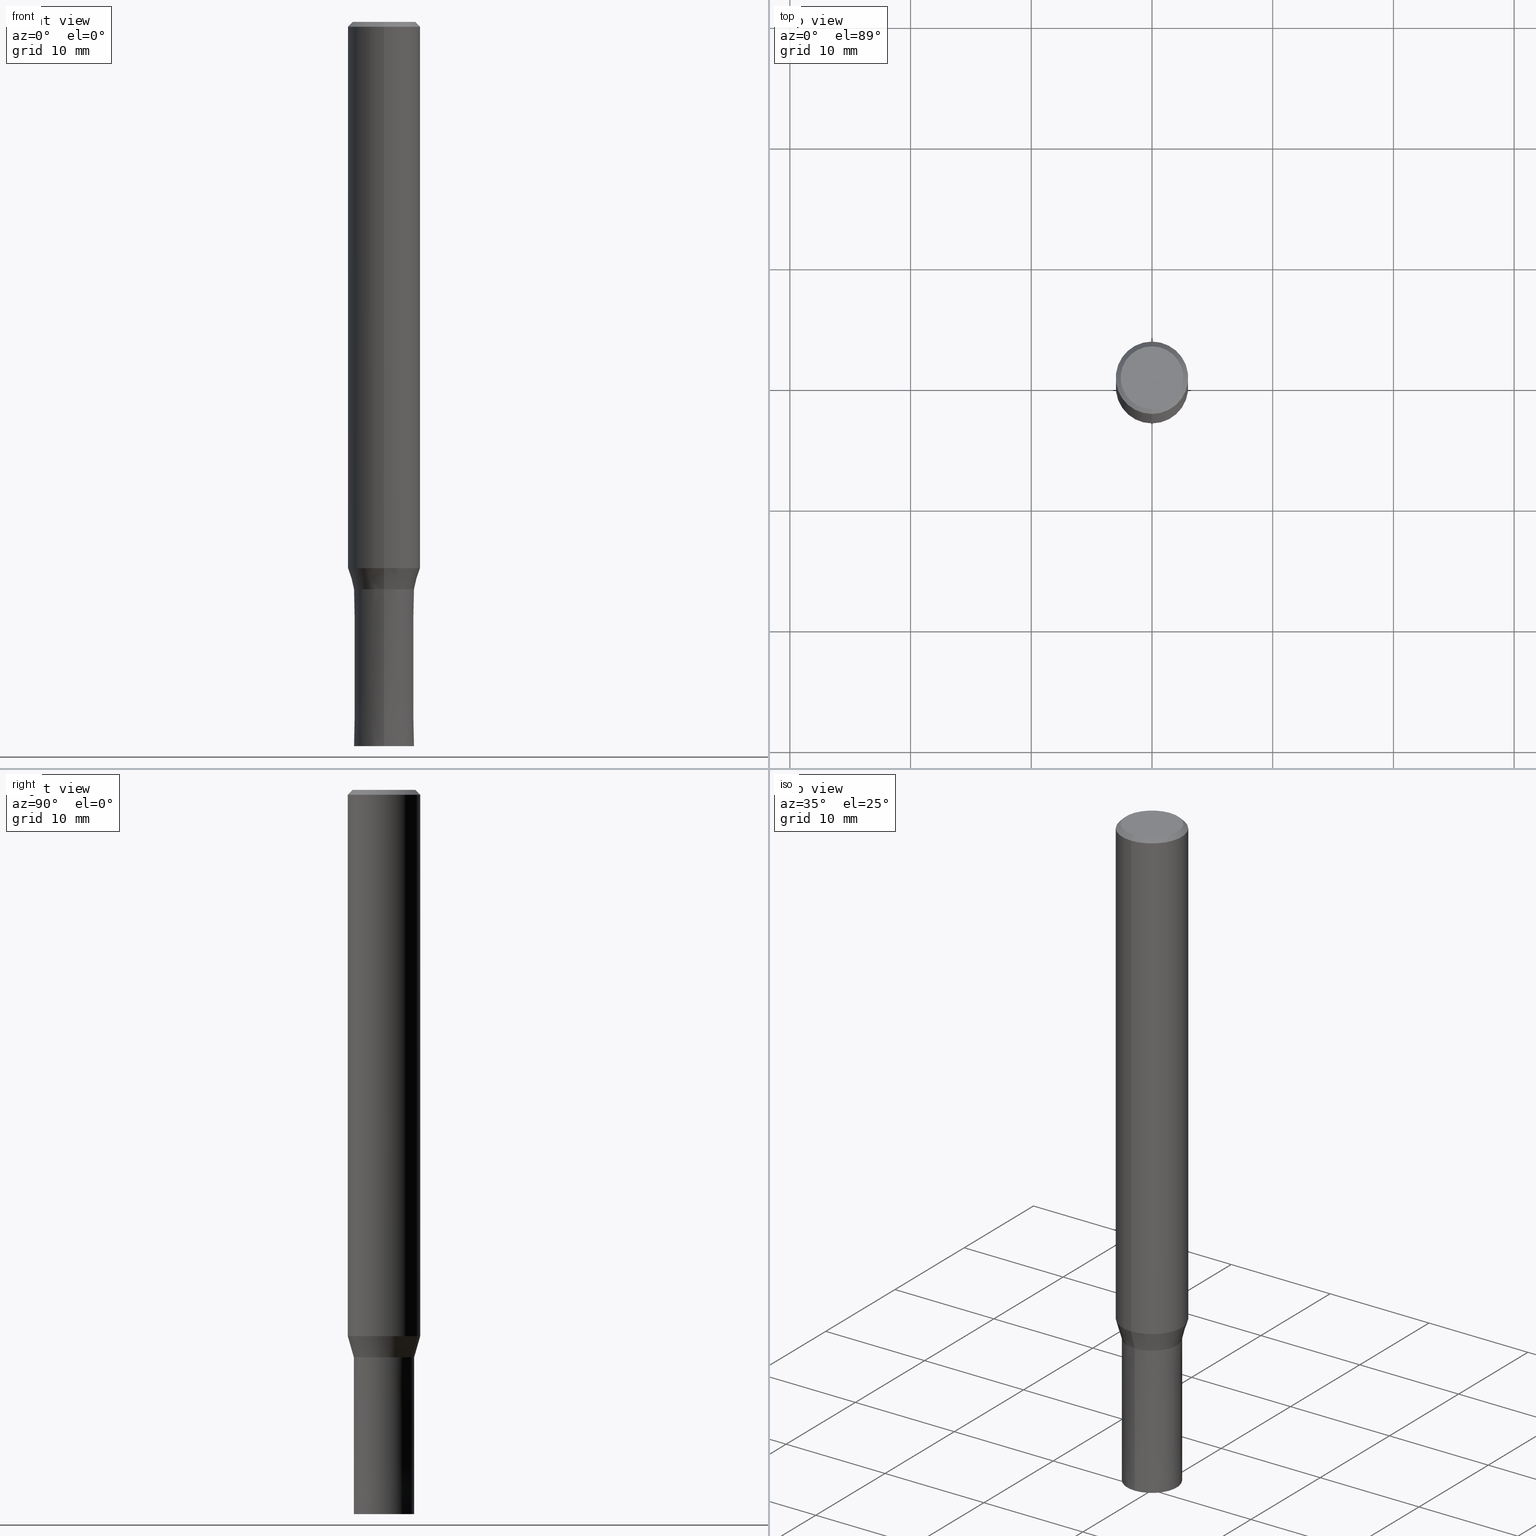
[diagram: canonical four-view strip — front | top / right | iso, engineering-drawing reading convention]
A machine part, canonical four-view strip (front | top / right | iso — engineering-drawing reading convention). The complete STEP part file that produces these views, byte-faithful:
ISO-10303-21;
HEADER;
FILE_DESCRIPTION(('no description'),'unknown implementation level');
FILE_NAME('CZS4050-1300-Huellk.stp','  ',('CIMSOURCE GmbH'),('CADClick - KiM GmbH - www.kimweb.de'),'unknown preprocess','ACIS','unknown authorization');
FILE_SCHEMA(('automotive_design'));
ENDSEC;
DATA;
#1=MECHANICAL_DESIGN_GEOMETRIC_PRESENTATION_REPRESENTATION(' ',(#14,#15,#16,#17,#18,#19,#20,#21,#22,#23,#24,#25,#26,#27,#28,#29,#30,#31,#32,#33,#34,#35,#36,#37,#38,#39,#40,#41,#42,#43,#44,#45,#46,#47,#48,#49,#50,#51,#52,#53,#54,#55,#56,#57,#58,#59,#60,#61,#62,#63,#64),#10);
#2=PRODUCT_DEFINITION_CONTEXT('',#65,'design');
#3=APPLICATION_PROTOCOL_DEFINITION('INTERNATIONAL STANDARD','automotive_design',1994,#65);
#4=PRODUCT_CATEGORY_RELATIONSHIP('NONE','NONE',#66,#67);
#5=SHAPE_DEFINITION_REPRESENTATION(#68,#69);
#6=PRODUCT_DEFINITION_CONTEXT('',#70,'design');
#7=APPLICATION_PROTOCOL_DEFINITION('INTERNATIONAL STANDARD','automotive_design',1994,#70);
#8=PRODUCT_CATEGORY_RELATIONSHIP('NONE','NONE',#71,#72);
#9=SHAPE_DEFINITION_REPRESENTATION(#73,#74);
#10= (GEOMETRIC_REPRESENTATION_CONTEXT(3)GLOBAL_UNCERTAINTY_ASSIGNED_CONTEXT((#77))GLOBAL_UNIT_ASSIGNED_CONTEXT((#79,#80,#81))REPRESENTATION_CONTEXT('NONE','WORKSPACE'));
#14=STYLED_ITEM('',(#83),#84);
#15=STYLED_ITEM('',(#85),#86);
#16=STYLED_ITEM('',(#87),#88);
#17=STYLED_ITEM('',(#89),#90);
#18=STYLED_ITEM('',(#91),#92);
#19=STYLED_ITEM('',(#93),#94);
#20=STYLED_ITEM('',(#95),#96);
#21=STYLED_ITEM('',(#97),#98);
#22=STYLED_ITEM('',(#99),#100);
#23=STYLED_ITEM('',(#101),#102);
#24=STYLED_ITEM('',(#103),#104);
#25=STYLED_ITEM('',(#105),#106);
#26=STYLED_ITEM('',(#107),#108);
#27=STYLED_ITEM('',(#109),#110);
#28=STYLED_ITEM('',(#111),#112);
#29=STYLED_ITEM('',(#113),#114);
#30=STYLED_ITEM('',(#115),#116);
#31=STYLED_ITEM('',(#117),#118);
#32=STYLED_ITEM('',(#119),#120);
#33=STYLED_ITEM('',(#121),#122);
#34=STYLED_ITEM('',(#123),#124);
#35=STYLED_ITEM('',(#125),#126);
#36=STYLED_ITEM('',(#127),#128);
#37=STYLED_ITEM('',(#129),#130);
#38=STYLED_ITEM('',(#131),#132);
#39=STYLED_ITEM('',(#133),#134);
#40=STYLED_ITEM('',(#135),#136);
#41=STYLED_ITEM('',(#137),#138);
#42=STYLED_ITEM('',(#139),#140);
#43=STYLED_ITEM('',(#141),#142);
#44=STYLED_ITEM('',(#143),#144);
#45=STYLED_ITEM('',(#145),#146);
#46=STYLED_ITEM('',(#147),#148);
#47=STYLED_ITEM('',(#149),#150);
#48=STYLED_ITEM('',(#151),#152);
#49=STYLED_ITEM('',(#153),#154);
#50=STYLED_ITEM('',(#155),#156);
#51=STYLED_ITEM('',(#157),#158);
#52=STYLED_ITEM('',(#159),#160);
#53=STYLED_ITEM('',(#161),#162);
#54=STYLED_ITEM('',(#163),#164);
#55=STYLED_ITEM('',(#165),#166);
#56=STYLED_ITEM('',(#167),#168);
#57=STYLED_ITEM('',(#169),#170);
#58=STYLED_ITEM('',(#171),#172);
#59=STYLED_ITEM('',(#173),#174);
#60=STYLED_ITEM('',(#175),#176);
#61=STYLED_ITEM('',(#177),#178);
#62=STYLED_ITEM('',(#179),#180);
#63=STYLED_ITEM('',(#181),#182);
#64=STYLED_ITEM('',(#183),#184);
#65=APPLICATION_CONTEXT(' ');
#66=PRODUCT_CATEGORY('part','NONE');
#67=PRODUCT_RELATED_PRODUCT_CATEGORY('detail',' ',(#185));
#68=PRODUCT_DEFINITION_SHAPE('NONE','NONE',#186);
#69=ADVANCED_BREP_SHAPE_REPRESENTATION('1',(#144,#187),#10);
#70=APPLICATION_CONTEXT(' ');
#71=PRODUCT_CATEGORY('part','NONE');
#72=PRODUCT_RELATED_PRODUCT_CATEGORY('detail',' ',(#188));
#73=PRODUCT_DEFINITION_SHAPE('NONE','NONE',#189);
#74=ADVANCED_BREP_SHAPE_REPRESENTATION('2',(#130,#190),#10);
#77=UNCERTAINTY_MEASURE_WITH_UNIT(LENGTH_MEASURE(1.0E-006),#79,'','');
#79= (CONVERSION_BASED_UNIT('MILLIMETRE',#193)LENGTH_UNIT()NAMED_UNIT(#196));
#80= (NAMED_UNIT(#198)PLANE_ANGLE_UNIT()SI_UNIT($,.RADIAN.));
#81= (NAMED_UNIT(#198)SOLID_ANGLE_UNIT()SI_UNIT($,.STERADIAN.));
#83=PRESENTATION_STYLE_ASSIGNMENT((#204));
#84=EDGE_CURVE('',#100,#160,#205,.T.);
#85=PRESENTATION_STYLE_ASSIGNMENT((#206));
#86=EDGE_CURVE('',#160,#100,#207,.T.);
#87=PRESENTATION_STYLE_ASSIGNMENT((#208));
#88=VERTEX_POINT('',#209);
#89=PRESENTATION_STYLE_ASSIGNMENT((#210));
#90=EDGE_CURVE('',#96,#166,#211,.T.);
#91=PRESENTATION_STYLE_ASSIGNMENT((#212));
#92=EDGE_CURVE('',#88,#128,#213,.T.);
#93=PRESENTATION_STYLE_ASSIGNMENT((#214));
#94=ADVANCED_FACE('',(#215),#216,.T.);
#95=PRESENTATION_STYLE_ASSIGNMENT((#217));
#96=VERTEX_POINT('',#218);
#97=PRESENTATION_STYLE_ASSIGNMENT((#219));
#98=VERTEX_POINT('',#220);
#99=PRESENTATION_STYLE_ASSIGNMENT((#221));
#100=VERTEX_POINT('',#222);
#101=PRESENTATION_STYLE_ASSIGNMENT((#223));
#102=EDGE_CURVE('',#112,#120,#224,.T.);
#103=PRESENTATION_STYLE_ASSIGNMENT((#225));
#104=EDGE_CURVE('',#88,#136,#226,.T.);
#105=PRESENTATION_STYLE_ASSIGNMENT((#227));
#106=EDGE_CURVE('',#182,#166,#228,.T.);
#107=PRESENTATION_STYLE_ASSIGNMENT((#229));
#108=ADVANCED_FACE('',(#230),#231,.T.);
#109=PRESENTATION_STYLE_ASSIGNMENT((#232));
#110=EDGE_CURVE('',#128,#88,#233,.T.);
#111=PRESENTATION_STYLE_ASSIGNMENT((#234));
#112=VERTEX_POINT('',#235);
#113=PRESENTATION_STYLE_ASSIGNMENT((#236));
#114=EDGE_CURVE('',#120,#182,#237,.T.);
#115=PRESENTATION_STYLE_ASSIGNMENT((#238));
#116=ADVANCED_FACE('',(#239),#240,.T.);
#117=PRESENTATION_STYLE_ASSIGNMENT((#241));
#118=EDGE_CURVE('',#120,#112,#242,.T.);
#119=PRESENTATION_STYLE_ASSIGNMENT((#243));
#120=VERTEX_POINT('',#244);
#121=PRESENTATION_STYLE_ASSIGNMENT((#245));
#122=EDGE_CURVE('',#136,#98,#246,.T.);
#123=PRESENTATION_STYLE_ASSIGNMENT((#247));
#124=EDGE_CURVE('',#160,#168,#248,.T.);
#125=PRESENTATION_STYLE_ASSIGNMENT((#249));
#126=EDGE_CURVE('',#168,#170,#250,.T.);
#127=PRESENTATION_STYLE_ASSIGNMENT((#251));
#128=VERTEX_POINT('',#252);
#129=PRESENTATION_STYLE_ASSIGNMENT((#253));
#130=MANIFOLD_SOLID_BREP('2',#254);
#131=PRESENTATION_STYLE_ASSIGNMENT((#255));
#132=ADVANCED_FACE('',(#256),#257,.T.);
#133=PRESENTATION_STYLE_ASSIGNMENT((#258));
#134=ADVANCED_FACE('',(#259),#260,.T.);
#135=PRESENTATION_STYLE_ASSIGNMENT((#261));
#136=VERTEX_POINT('',#262);
#137=PRESENTATION_STYLE_ASSIGNMENT((#263));
#138=ADVANCED_FACE('',(#264),#265,.T.);
#139=PRESENTATION_STYLE_ASSIGNMENT((#266));
#140=ADVANCED_FACE('',(#267),#268,.T.);
#141=PRESENTATION_STYLE_ASSIGNMENT((#269));
#142=EDGE_CURVE('',#162,#182,#270,.T.);
#143=PRESENTATION_STYLE_ASSIGNMENT((#271));
#144=MANIFOLD_SOLID_BREP('1',#272);
#145=PRESENTATION_STYLE_ASSIGNMENT((#273));
#146=EDGE_CURVE('',#170,#168,#274,.T.);
#147=PRESENTATION_STYLE_ASSIGNMENT((#275));
#148=ADVANCED_FACE('',(#276),#277,.T.);
#149=PRESENTATION_STYLE_ASSIGNMENT((#278));
#150=ADVANCED_FACE('',(#279),#280,.T.);
#151=PRESENTATION_STYLE_ASSIGNMENT((#281));
#152=ADVANCED_FACE('',(#282),#283,.T.);
#153=PRESENTATION_STYLE_ASSIGNMENT((#284));
#154=EDGE_CURVE('',#96,#162,#285,.T.);
#155=PRESENTATION_STYLE_ASSIGNMENT((#286));
#156=EDGE_CURVE('',#166,#96,#287,.T.);
#157=PRESENTATION_STYLE_ASSIGNMENT((#288));
#158=EDGE_CURVE('',#162,#112,#289,.T.);
#159=PRESENTATION_STYLE_ASSIGNMENT((#290));
#160=VERTEX_POINT('',#291);
#161=PRESENTATION_STYLE_ASSIGNMENT((#292));
#162=VERTEX_POINT('',#293);
#163=PRESENTATION_STYLE_ASSIGNMENT((#294));
#164=EDGE_CURVE('',#98,#128,#295,.T.);
#165=PRESENTATION_STYLE_ASSIGNMENT((#296));
#166=VERTEX_POINT('',#297);
#167=PRESENTATION_STYLE_ASSIGNMENT((#298));
#168=VERTEX_POINT('',#299);
#169=PRESENTATION_STYLE_ASSIGNMENT((#300));
#170=VERTEX_POINT('',#301);
#171=PRESENTATION_STYLE_ASSIGNMENT((#302));
#172=EDGE_CURVE('',#98,#136,#303,.T.);
#173=PRESENTATION_STYLE_ASSIGNMENT((#304));
#174=EDGE_CURVE('',#170,#100,#305,.T.);
#175=PRESENTATION_STYLE_ASSIGNMENT((#306));
#176=EDGE_CURVE('',#182,#162,#307,.T.);
#177=PRESENTATION_STYLE_ASSIGNMENT((#308));
#178=ADVANCED_FACE('',(#309,#310),#311,.T.);
#179=PRESENTATION_STYLE_ASSIGNMENT((#312));
#180=ADVANCED_FACE('',(#313),#314,.T.);
#181=PRESENTATION_STYLE_ASSIGNMENT((#315));
#182=VERTEX_POINT('',#316);
#183=PRESENTATION_STYLE_ASSIGNMENT((#317));
#184=ADVANCED_FACE('',(#318),#319,.T.);
#185=PRODUCT('1','1','PART-1-DESC',(#320));
#186=PRODUCT_DEFINITION('NONE','NONE',#321,#2);
#187=AXIS2_PLACEMENT_3D('',#322,#323,#324);
#188=PRODUCT('2','2','PART-2-DESC',(#325));
#189=PRODUCT_DEFINITION('NONE','NONE',#326,#6);
#190=AXIS2_PLACEMENT_3D('',#327,#328,#329);
#193=LENGTH_MEASURE_WITH_UNIT(LENGTH_MEASURE(1.0),#330);
#196=DIMENSIONAL_EXPONENTS(1.0,0.0,0.0,0.0,0.0,0.0,0.0);
#198=DIMENSIONAL_EXPONENTS(0.0,0.0,0.0,0.0,0.0,0.0,0.0);
#204=CURVE_STYLE('',#331,POSITIVE_LENGTH_MEASURE(1.0E-006),#332);
#205=CIRCLE('',#333,2.4999);
#206=CURVE_STYLE('',#334,POSITIVE_LENGTH_MEASURE(1.0E-006),#335);
#207=CIRCLE('',#336,2.4999);
#208=POINT_STYLE(' ',#337,POSITIVE_LENGTH_MEASURE(1.0E-006),#338);
#209=CARTESIAN_POINT('',(3.06145465423825E-016,-2.49995,-47.0));
#210=CURVE_STYLE('',#339,POSITIVE_LENGTH_MEASURE(1.0E-006),#340);
#211=CIRCLE('',#341,3.0);
#212=CURVE_STYLE('',#342,POSITIVE_LENGTH_MEASURE(1.0E-006),#343);
#213=CIRCLE('',#344,2.49995);
#214=SURFACE_STYLE_USAGE(.BOTH.,#345);
#215=FACE_OUTER_BOUND('',#346,.T.);
#216=CONICAL_SURFACE('',#347,2.49995,7.6923076921722E-006);
#217=POINT_STYLE(' ',#348,POSITIVE_LENGTH_MEASURE(1.0E-006),#349);
#218=CARTESIAN_POINT('',(3.67381906146713E-016,-3.0,-45.256));
#219=POINT_STYLE(' ',#350,POSITIVE_LENGTH_MEASURE(1.0E-006),#351);
#220=CARTESIAN_POINT('',(0.0,2.99995,-45.256));
#221=POINT_STYLE(' ',#352,POSITIVE_LENGTH_MEASURE(1.0E-006),#353);
#222=CARTESIAN_POINT('',(3.06139342392056E-016,-2.4999,-47.0));
#223=CURVE_STYLE('',#354,POSITIVE_LENGTH_MEASURE(1.0E-006),#355);
#224=CIRCLE('',#356,2.6);
#225=CURVE_STYLE('',#357,POSITIVE_LENGTH_MEASURE(1.0E-006),#358);
#226=LINE('',#359,#360);
#227=CURVE_STYLE('',#361,POSITIVE_LENGTH_MEASURE(1.0E-006),#362);
#228=LINE('',#363,#364);
#229=SURFACE_STYLE_USAGE(.BOTH.,#365);
#230=FACE_OUTER_BOUND('',#366,.T.);
#231=PLANE('',#367);
#232=CURVE_STYLE('',#368,POSITIVE_LENGTH_MEASURE(1.0E-006),#369);
#233=CIRCLE('',#370,2.49995);
#234=POINT_STYLE(' ',#371,POSITIVE_LENGTH_MEASURE(1.0E-006),#372);
#235=CARTESIAN_POINT('',(3.18397651993818E-016,-2.6,0.0));
#236=CURVE_STYLE('',#373,POSITIVE_LENGTH_MEASURE(1.0E-006),#374);
#237=LINE('',#375,#376);
#238=SURFACE_STYLE_USAGE(.BOTH.,#377);
#239=FACE_OUTER_BOUND('',#378,.T.);
#240=CYLINDRICAL_SURFACE('',#379,3.0);
#241=CURVE_STYLE('',#380,POSITIVE_LENGTH_MEASURE(1.0E-006),#381);
#242=CIRCLE('',#382,2.6);
#243=POINT_STYLE(' ',#383,POSITIVE_LENGTH_MEASURE(1.0E-006),#384);
#244=CARTESIAN_POINT('',(0.0,2.6,0.0));
#245=CURVE_STYLE('',#385,POSITIVE_LENGTH_MEASURE(1.0E-006),#386);
#246=CIRCLE('',#387,2.99995);
#247=CURVE_STYLE('',#388,POSITIVE_LENGTH_MEASURE(1.0E-006),#389);
#248=LINE('',#390,#391);
#249=CURVE_STYLE('',#392,POSITIVE_LENGTH_MEASURE(1.0E-006),#393);
#250=CIRCLE('',#394,2.5);
#251=POINT_STYLE(' ',#395,POSITIVE_LENGTH_MEASURE(1.0E-006),#396);
#252=CARTESIAN_POINT('',(0.0,2.49995,-47.0));
#253=SURFACE_STYLE_USAGE(.BOTH.,#397);
#254=CLOSED_SHELL('',(#134,#132,#94,#184));
#255=SURFACE_STYLE_USAGE(.BOTH.,#398);
#256=FACE_OUTER_BOUND('',#399,.T.);
#257=PLANE('',#400);
#258=SURFACE_STYLE_USAGE(.BOTH.,#401);
#259=FACE_OUTER_BOUND('',#402,.T.);
#260=CONICAL_SURFACE('',#403,2.49995,7.6923076921722E-006);
#261=POINT_STYLE(' ',#404,POSITIVE_LENGTH_MEASURE(1.0E-006),#405);
#262=CARTESIAN_POINT('',(3.67375783114944E-016,-2.99995,-45.256));
#263=SURFACE_STYLE_USAGE(.BOTH.,#406);
#264=FACE_OUTER_BOUND('',#407,.T.);
#265=PLANE('',#408);
#266=SURFACE_STYLE_USAGE(.BOTH.,#409);
#267=FACE_OUTER_BOUND('',#410,.T.);
#268=CYLINDRICAL_SURFACE('',#411,3.0);
#269=CURVE_STYLE('',#412,POSITIVE_LENGTH_MEASURE(1.0E-006),#413);
#270=CIRCLE('',#414,3.0);
#271=SURFACE_STYLE_USAGE(.BOTH.,#415);
#272=CLOSED_SHELL('',(#148,#140,#150,#178,#138,#180,#116,#152,#108));
#273=CURVE_STYLE('',#416,POSITIVE_LENGTH_MEASURE(1.0E-006),#417);
#274=CIRCLE('',#418,2.5);
#275=SURFACE_STYLE_USAGE(.BOTH.,#419);
#276=FACE_OUTER_BOUND('',#420,.T.);
#277=CONICAL_SURFACE('',#421,2.74995,0.279208199033747);
#278=SURFACE_STYLE_USAGE(.BOTH.,#422);
#279=FACE_OUTER_BOUND('',#423,.T.);
#280=CONICAL_SURFACE('',#424,2.8,0.78539816339745);
#281=SURFACE_STYLE_USAGE(.BOTH.,#425);
#282=FACE_OUTER_BOUND('',#426,.T.);
#283=CONICAL_SURFACE('',#427,2.74995,0.279208199033747);
#284=CURVE_STYLE('',#428,POSITIVE_LENGTH_MEASURE(1.0E-006),#429);
#285=LINE('',#430,#431);
#286=CURVE_STYLE('',#432,POSITIVE_LENGTH_MEASURE(1.0E-006),#433);
#287=CIRCLE('',#434,3.0);
#288=CURVE_STYLE('',#435,POSITIVE_LENGTH_MEASURE(1.0E-006),#436);
#289=LINE('',#437,#438);
#290=POINT_STYLE(' ',#439,POSITIVE_LENGTH_MEASURE(1.0E-006),#440);
#291=CARTESIAN_POINT('',(0.0,2.4999,-47.0));
#292=POINT_STYLE(' ',#441,POSITIVE_LENGTH_MEASURE(1.0E-006),#442);
#293=CARTESIAN_POINT('',(3.67381906146713E-016,-3.0,-0.399999999999999));
#294=CURVE_STYLE('',#443,POSITIVE_LENGTH_MEASURE(1.0E-006),#444);
#295=LINE('',#445,#446);
#296=POINT_STYLE(' ',#447,POSITIVE_LENGTH_MEASURE(1.0E-006),#448);
#297=CARTESIAN_POINT('',(0.0,3.0,-45.256));
#298=POINT_STYLE(' ',#449,POSITIVE_LENGTH_MEASURE(1.0E-006),#450);
#299=CARTESIAN_POINT('',(0.0,2.5,-60.0));
#300=POINT_STYLE(' ',#451,POSITIVE_LENGTH_MEASURE(1.0E-006),#452);
#301=CARTESIAN_POINT('',(3.06151588455594E-016,-2.5,-60.0));
#302=CURVE_STYLE('',#453,POSITIVE_LENGTH_MEASURE(1.0E-006),#454);
#303=CIRCLE('',#455,2.99995);
#304=CURVE_STYLE('',#456,POSITIVE_LENGTH_MEASURE(1.0E-006),#457);
#305=LINE('',#458,#459);
#306=CURVE_STYLE('',#460,POSITIVE_LENGTH_MEASURE(1.0E-006),#461);
#307=CIRCLE('',#462,3.0);
#308=SURFACE_STYLE_USAGE(.BOTH.,#463);
#309=FACE_OUTER_BOUND('',#464,.T.);
#310=FACE_BOUND('',#465,.T.);
#311=PLANE('',#466);
#312=SURFACE_STYLE_USAGE(.BOTH.,#467);
#313=FACE_OUTER_BOUND('',#468,.T.);
#314=CONICAL_SURFACE('',#469,2.8,0.78539816339745);
#315=POINT_STYLE(' ',#470,POSITIVE_LENGTH_MEASURE(1.0E-006),#471);
#316=CARTESIAN_POINT('',(0.0,3.0,-0.399999999999999));
#317=SURFACE_STYLE_USAGE(.BOTH.,#472);
#318=FACE_OUTER_BOUND('',#473,.T.);
#319=PLANE('',#474);
#320=PRODUCT_CONTEXT('',#65,'mechanical');
#321=PRODUCT_DEFINITION_FORMATION_WITH_SPECIFIED_SOURCE(' ','NONE',#185,.NOT_KNOWN.);
#322=CARTESIAN_POINT('',(0.0,0.0,0.0));
#323=DIRECTION('',(0.0,0.0,1.0));
#324=DIRECTION('',(1.0,0.0,0.0));
#325=PRODUCT_CONTEXT('',#70,'mechanical');
#326=PRODUCT_DEFINITION_FORMATION_WITH_SPECIFIED_SOURCE(' ','NONE',#188,.NOT_KNOWN.);
#327=CARTESIAN_POINT('',(0.0,0.0,0.0));
#328=DIRECTION('',(0.0,0.0,1.0));
#329=DIRECTION('',(1.0,0.0,0.0));
#330= (NAMED_UNIT(#196)LENGTH_UNIT()SI_UNIT(.MILLI.,.METRE.));
#331=DRAUGHTING_PRE_DEFINED_CURVE_FONT('continuous');
#332=COLOUR_RGB('',0.800000011920929,0.800000011920929,0.800000011920929);
#333=AXIS2_PLACEMENT_3D('',#476,#477,#478);
#334=DRAUGHTING_PRE_DEFINED_CURVE_FONT('continuous');
#335=COLOUR_RGB('',0.800000011920929,0.800000011920929,0.800000011920929);
#336=AXIS2_PLACEMENT_3D('',#479,#480,#481);
#337=PRE_DEFINED_MARKER('');
#338=COLOUR_RGB('',0.498039215803146,0.498039215803146,0.498039215803146);
#339=DRAUGHTING_PRE_DEFINED_CURVE_FONT('continuous');
#340=COLOUR_RGB('',0.498039215803146,0.498039215803146,0.498039215803146);
#341=AXIS2_PLACEMENT_3D('',#482,#483,#484);
#342=DRAUGHTING_PRE_DEFINED_CURVE_FONT('continuous');
#343=COLOUR_RGB('',0.498039215803146,0.498039215803146,0.498039215803146);
#344=AXIS2_PLACEMENT_3D('',#485,#486,#487);
#345=SURFACE_SIDE_STYLE('',(#488));
#346=EDGE_LOOP('',(#489,#490,#491,#492));
#347=AXIS2_PLACEMENT_3D('',#493,#494,#495);
#348=PRE_DEFINED_MARKER('');
#349=COLOUR_RGB('',0.498039215803146,0.498039215803146,0.498039215803146);
#350=PRE_DEFINED_MARKER('');
#351=COLOUR_RGB('',0.498039215803146,0.498039215803146,0.498039215803146);
#352=PRE_DEFINED_MARKER('');
#353=COLOUR_RGB('',0.800000011920929,0.800000011920929,0.800000011920929);
#354=DRAUGHTING_PRE_DEFINED_CURVE_FONT('continuous');
#355=COLOUR_RGB('',0.498039215803146,0.498039215803146,0.498039215803146);
#356=AXIS2_PLACEMENT_3D('',#496,#497,#498);
#357=DRAUGHTING_PRE_DEFINED_CURVE_FONT('continuous');
#358=COLOUR_RGB('',0.498039215803146,0.498039215803146,0.498039215803146);
#359=CARTESIAN_POINT('',(3.36760624269385E-016,-2.74995,-46.128));
#360=VECTOR('',#499,1.0);
#361=DRAUGHTING_PRE_DEFINED_CURVE_FONT('continuous');
#362=COLOUR_RGB('',0.498039215803146,0.498039215803146,0.498039215803146);
#363=CARTESIAN_POINT('',(-3.67381906146713E-016,3.0,-22.828));
#364=VECTOR('',#500,1.0);
#365=SURFACE_SIDE_STYLE('',(#501));
#366=EDGE_LOOP('',(#502,#503));
#367=AXIS2_PLACEMENT_3D('',#504,#505,#506);
#368=DRAUGHTING_PRE_DEFINED_CURVE_FONT('continuous');
#369=COLOUR_RGB('',0.498039215803146,0.498039215803146,0.498039215803146);
#370=AXIS2_PLACEMENT_3D('',#507,#508,#509);
#371=PRE_DEFINED_MARKER('');
#372=COLOUR_RGB('',0.498039215803146,0.498039215803146,0.498039215803146);
#373=DRAUGHTING_PRE_DEFINED_CURVE_FONT('continuous');
#374=COLOUR_RGB('',0.498039215803146,0.498039215803146,0.498039215803146);
#375=CARTESIAN_POINT('',(-3.42889779070266E-016,2.8,-0.200000000000003));
#376=VECTOR('',#510,1.0);
#377=SURFACE_SIDE_STYLE('',(#511));
#378=EDGE_LOOP('',(#512,#513,#514,#515));
#379=AXIS2_PLACEMENT_3D('',#516,#517,#518);
#380=DRAUGHTING_PRE_DEFINED_CURVE_FONT('continuous');
#381=COLOUR_RGB('',0.498039215803146,0.498039215803146,0.498039215803146);
#382=AXIS2_PLACEMENT_3D('',#519,#520,#521);
#383=PRE_DEFINED_MARKER('');
#384=COLOUR_RGB('',0.498039215803146,0.498039215803146,0.498039215803146);
#385=DRAUGHTING_PRE_DEFINED_CURVE_FONT('continuous');
#386=COLOUR_RGB('',0.498039215803146,0.498039215803146,0.498039215803146);
#387=AXIS2_PLACEMENT_3D('',#522,#523,#524);
#388=DRAUGHTING_PRE_DEFINED_CURVE_FONT('continuous');
#389=COLOUR_RGB('',0.800000011920929,0.800000011920929,0.800000011920929);
#390=CARTESIAN_POINT('',(-3.06145465423825E-016,2.49995,-53.5));
#391=VECTOR('',#525,1.0);
#392=DRAUGHTING_PRE_DEFINED_CURVE_FONT('continuous');
#393=COLOUR_RGB('',0.800000011920929,0.800000011920929,0.800000011920929);
#394=AXIS2_PLACEMENT_3D('',#526,#527,#528);
#395=PRE_DEFINED_MARKER('');
#396=COLOUR_RGB('',0.498039215803146,0.498039215803146,0.498039215803146);
#397=SURFACE_SIDE_STYLE('',(#529));
#398=SURFACE_SIDE_STYLE('',(#530));
#399=EDGE_LOOP('',(#531,#532));
#400=AXIS2_PLACEMENT_3D('',#533,#534,#535);
#401=SURFACE_SIDE_STYLE('',(#536));
#402=EDGE_LOOP('',(#537,#538,#539,#540));
#403=AXIS2_PLACEMENT_3D('',#541,#542,#543);
#404=PRE_DEFINED_MARKER('');
#405=COLOUR_RGB('',0.498039215803146,0.498039215803146,0.498039215803146);
#406=SURFACE_SIDE_STYLE('',(#544));
#407=EDGE_LOOP('',(#545,#546));
#408=AXIS2_PLACEMENT_3D('',#547,#548,#549);
#409=SURFACE_SIDE_STYLE('',(#550));
#410=EDGE_LOOP('',(#551,#552,#553,#554));
#411=AXIS2_PLACEMENT_3D('',#555,#556,#557);
#412=DRAUGHTING_PRE_DEFINED_CURVE_FONT('continuous');
#413=COLOUR_RGB('',0.498039215803146,0.498039215803146,0.498039215803146);
#414=AXIS2_PLACEMENT_3D('',#558,#559,#560);
#415=SURFACE_SIDE_STYLE('',(#561));
#416=DRAUGHTING_PRE_DEFINED_CURVE_FONT('continuous');
#417=COLOUR_RGB('',0.800000011920929,0.800000011920929,0.800000011920929);
#418=AXIS2_PLACEMENT_3D('',#562,#563,#564);
#419=SURFACE_SIDE_STYLE('',(#565));
#420=EDGE_LOOP('',(#566,#567,#568,#569));
#421=AXIS2_PLACEMENT_3D('',#570,#571,#572);
#422=SURFACE_SIDE_STYLE('',(#573));
#423=EDGE_LOOP('',(#574,#575,#576,#577));
#424=AXIS2_PLACEMENT_3D('',#578,#579,#580);
#425=SURFACE_SIDE_STYLE('',(#581));
#426=EDGE_LOOP('',(#582,#583,#584,#585));
#427=AXIS2_PLACEMENT_3D('',#586,#587,#588);
#428=DRAUGHTING_PRE_DEFINED_CURVE_FONT('continuous');
#429=COLOUR_RGB('',0.498039215803146,0.498039215803146,0.498039215803146);
#430=CARTESIAN_POINT('',(3.67381906146713E-016,-3.0,-22.828));
#431=VECTOR('',#589,1.0);
#432=DRAUGHTING_PRE_DEFINED_CURVE_FONT('continuous');
#433=COLOUR_RGB('',0.498039215803146,0.498039215803146,0.498039215803146);
#434=AXIS2_PLACEMENT_3D('',#590,#591,#592);
#435=DRAUGHTING_PRE_DEFINED_CURVE_FONT('continuous');
#436=COLOUR_RGB('',0.498039215803146,0.498039215803146,0.498039215803146);
#437=CARTESIAN_POINT('',(3.42889779070266E-016,-2.8,-0.200000000000003));
#438=VECTOR('',#593,1.0);
#439=PRE_DEFINED_MARKER('');
#440=COLOUR_RGB('',0.800000011920929,0.800000011920929,0.800000011920929);
#441=PRE_DEFINED_MARKER('');
#442=COLOUR_RGB('',0.498039215803146,0.498039215803146,0.498039215803146);
#443=DRAUGHTING_PRE_DEFINED_CURVE_FONT('continuous');
#444=COLOUR_RGB('',0.498039215803146,0.498039215803146,0.498039215803146);
#445=CARTESIAN_POINT('',(-3.36760624269385E-016,2.74995,-46.128));
#446=VECTOR('',#594,1.0);
#447=PRE_DEFINED_MARKER('');
#448=COLOUR_RGB('',0.498039215803146,0.498039215803146,0.498039215803146);
#449=PRE_DEFINED_MARKER('');
#450=COLOUR_RGB('',0.800000011920929,0.800000011920929,0.800000011920929);
#451=PRE_DEFINED_MARKER('');
#452=COLOUR_RGB('',0.800000011920929,0.800000011920929,0.800000011920929);
#453=DRAUGHTING_PRE_DEFINED_CURVE_FONT('continuous');
#454=COLOUR_RGB('',0.498039215803146,0.498039215803146,0.498039215803146);
#455=AXIS2_PLACEMENT_3D('',#595,#596,#597);
#456=DRAUGHTING_PRE_DEFINED_CURVE_FONT('continuous');
#457=COLOUR_RGB('',0.800000011920929,0.800000011920929,0.800000011920929);
#458=CARTESIAN_POINT('',(3.06145465423825E-016,-2.49995,-53.5));
#459=VECTOR('',#598,1.0);
#460=DRAUGHTING_PRE_DEFINED_CURVE_FONT('continuous');
#461=COLOUR_RGB('',0.498039215803146,0.498039215803146,0.498039215803146);
#462=AXIS2_PLACEMENT_3D('',#599,#600,#601);
#463=SURFACE_SIDE_STYLE('',(#602));
#464=EDGE_LOOP('',(#603,#604));
#465=EDGE_LOOP('',(#605,#606));
#466=AXIS2_PLACEMENT_3D('',#607,#608,#609);
#467=SURFACE_SIDE_STYLE('',(#610));
#468=EDGE_LOOP('',(#611,#612,#613,#614));
#469=AXIS2_PLACEMENT_3D('',#615,#616,#617);
#470=PRE_DEFINED_MARKER('');
#471=COLOUR_RGB('',0.498039215803146,0.498039215803146,0.498039215803146);
#472=SURFACE_SIDE_STYLE('',(#618));
#473=EDGE_LOOP('',(#619,#620));
#474=AXIS2_PLACEMENT_3D('',#621,#622,#623);
#476=CARTESIAN_POINT('',(0.0,0.0,-47.0));
#477=DIRECTION('',(0.0,0.0,-1.0));
#478=DIRECTION('',(0.0,1.0,0.0));
#479=CARTESIAN_POINT('',(0.0,0.0,-47.0));
#480=DIRECTION('',(0.0,0.0,-1.0));
#481=DIRECTION('',(0.0,1.0,0.0));
#482=CARTESIAN_POINT('',(0.0,0.0,-45.256));
#483=DIRECTION('',(0.0,0.0,-1.0));
#484=DIRECTION('',(0.0,1.0,0.0));
#485=CARTESIAN_POINT('',(0.0,0.0,-47.0));
#486=DIRECTION('',(0.0,0.0,-1.0));
#487=DIRECTION('',(0.0,1.0,0.0));
#488=SURFACE_STYLE_FILL_AREA(#624);
#489=ORIENTED_EDGE('',*,*,#124,.T.);
#490=ORIENTED_EDGE('',*,*,#146,.F.);
#491=ORIENTED_EDGE('',*,*,#174,.T.);
#492=ORIENTED_EDGE('',*,*,#84,.T.);
#493=CARTESIAN_POINT('',(0.0,0.0,-53.5));
#494=DIRECTION('',(0.0,-0.0,-1.0));
#495=DIRECTION('',(0.0,1.0,0.0));
#496=CARTESIAN_POINT('',(0.0,0.0,0.0));
#497=DIRECTION('',(0.0,0.0,-1.0));
#498=DIRECTION('',(0.0,1.0,0.0));
#499=DIRECTION('',(3.37494895041124E-017,-0.275594597388538,0.961273955691222));
#500=DIRECTION('',(0.0,0.0,-1.0));
#501=SURFACE_STYLE_FILL_AREA(#625);
#502=ORIENTED_EDGE('',*,*,#110,.T.);
#503=ORIENTED_EDGE('',*,*,#92,.T.);
#504=CARTESIAN_POINT('',(0.0,1.249975,-47.0));
#505=DIRECTION('',(0.0,0.0,-1.0));
#506=DIRECTION('',(0.0,1.0,0.0));
#507=CARTESIAN_POINT('',(0.0,0.0,-47.0));
#508=DIRECTION('',(0.0,0.0,-1.0));
#509=DIRECTION('',(0.0,1.0,0.0));
#510=DIRECTION('',(-8.65927457071937E-017,0.707106781186549,-0.707106781186546));
#511=SURFACE_STYLE_FILL_AREA(#626);
#512=ORIENTED_EDGE('',*,*,#106,.T.);
#513=ORIENTED_EDGE('',*,*,#90,.F.);
#514=ORIENTED_EDGE('',*,*,#154,.T.);
#515=ORIENTED_EDGE('',*,*,#142,.T.);
#516=CARTESIAN_POINT('',(0.0,0.0,-22.828));
#517=DIRECTION('',(-0.0,-0.0,1.0));
#518=DIRECTION('',(0.0,1.0,0.0));
#519=CARTESIAN_POINT('',(0.0,0.0,0.0));
#520=DIRECTION('',(0.0,0.0,-1.0));
#521=DIRECTION('',(0.0,1.0,0.0));
#522=CARTESIAN_POINT('',(0.0,0.0,-45.256));
#523=DIRECTION('',(0.0,0.0,-1.0));
#524=DIRECTION('',(0.0,1.0,0.0));
#525=DIRECTION('',(-9.42004887529793E-022,7.69230769209634E-006,-0.999999999970414));
#526=CARTESIAN_POINT('',(0.0,0.0,-60.0));
#527=DIRECTION('',(0.0,0.0,-1.0));
#528=DIRECTION('',(0.0,1.0,0.0));
#529=SURFACE_STYLE_FILL_AREA(#627);
#530=SURFACE_STYLE_FILL_AREA(#628);
#531=ORIENTED_EDGE('',*,*,#86,.F.);
#532=ORIENTED_EDGE('',*,*,#84,.F.);
#533=CARTESIAN_POINT('',(0.0,1.24995,-47.0));
#534=DIRECTION('',(-0.0,0.0,1.0));
#535=DIRECTION('',(0.0,-1.0,0.0));
#536=SURFACE_STYLE_FILL_AREA(#629);
#537=ORIENTED_EDGE('',*,*,#124,.F.);
#538=ORIENTED_EDGE('',*,*,#86,.T.);
#539=ORIENTED_EDGE('',*,*,#174,.F.);
#540=ORIENTED_EDGE('',*,*,#126,.F.);
#541=CARTESIAN_POINT('',(0.0,0.0,-53.5));
#542=DIRECTION('',(0.0,-0.0,-1.0));
#543=DIRECTION('',(0.0,1.0,0.0));
#544=SURFACE_STYLE_FILL_AREA(#630);
#545=ORIENTED_EDGE('',*,*,#118,.F.);
#546=ORIENTED_EDGE('',*,*,#102,.F.);
#547=CARTESIAN_POINT('',(0.0,1.3,0.0));
#548=DIRECTION('',(-0.0,0.0,1.0));
#549=DIRECTION('',(0.0,-1.0,0.0));
#550=SURFACE_STYLE_FILL_AREA(#631);
#551=ORIENTED_EDGE('',*,*,#106,.F.);
#552=ORIENTED_EDGE('',*,*,#176,.T.);
#553=ORIENTED_EDGE('',*,*,#154,.F.);
#554=ORIENTED_EDGE('',*,*,#156,.F.);
#555=CARTESIAN_POINT('',(0.0,0.0,-22.828));
#556=DIRECTION('',(-0.0,-0.0,1.0));
#557=DIRECTION('',(0.0,1.0,0.0));
#558=CARTESIAN_POINT('',(0.0,0.0,-0.399999999999999));
#559=DIRECTION('',(0.0,0.0,-1.0));
#560=DIRECTION('',(0.0,1.0,0.0));
#561=SURFACE_STYLE_FILL_AREA(#632);
#562=CARTESIAN_POINT('',(0.0,0.0,-60.0));
#563=DIRECTION('',(0.0,0.0,-1.0));
#564=DIRECTION('',(0.0,1.0,0.0));
#565=SURFACE_STYLE_FILL_AREA(#633);
#566=ORIENTED_EDGE('',*,*,#164,.F.);
#567=ORIENTED_EDGE('',*,*,#172,.T.);
#568=ORIENTED_EDGE('',*,*,#104,.F.);
#569=ORIENTED_EDGE('',*,*,#110,.F.);
#570=CARTESIAN_POINT('',(0.0,0.0,-46.128));
#571=DIRECTION('',(-0.0,-0.0,1.0));
#572=DIRECTION('',(0.0,1.0,0.0));
#573=SURFACE_STYLE_FILL_AREA(#634);
#574=ORIENTED_EDGE('',*,*,#114,.F.);
#575=ORIENTED_EDGE('',*,*,#118,.T.);
#576=ORIENTED_EDGE('',*,*,#158,.F.);
#577=ORIENTED_EDGE('',*,*,#176,.F.);
#578=CARTESIAN_POINT('',(0.0,0.0,-0.200000000000003));
#579=DIRECTION('',(0.0,-0.0,-1.0));
#580=DIRECTION('',(0.0,1.0,0.0));
#581=SURFACE_STYLE_FILL_AREA(#635);
#582=ORIENTED_EDGE('',*,*,#164,.T.);
#583=ORIENTED_EDGE('',*,*,#92,.F.);
#584=ORIENTED_EDGE('',*,*,#104,.T.);
#585=ORIENTED_EDGE('',*,*,#122,.T.);
#586=CARTESIAN_POINT('',(0.0,0.0,-46.128));
#587=DIRECTION('',(-0.0,-0.0,1.0));
#588=DIRECTION('',(0.0,1.0,0.0));
#589=DIRECTION('',(-0.0,-0.0,1.0));
#590=CARTESIAN_POINT('',(0.0,0.0,-45.256));
#591=DIRECTION('',(0.0,0.0,-1.0));
#592=DIRECTION('',(0.0,1.0,0.0));
#593=DIRECTION('',(-8.65927457071937E-017,0.707106781186549,0.707106781186546));
#594=DIRECTION('',(3.37494895041124E-017,-0.275594597388538,-0.961273955691222));
#595=CARTESIAN_POINT('',(0.0,0.0,-45.256));
#596=DIRECTION('',(0.0,0.0,-1.0));
#597=DIRECTION('',(0.0,1.0,0.0));
#598=DIRECTION('',(-9.42004887529793E-022,7.69230769209634E-006,0.999999999970414));
#599=CARTESIAN_POINT('',(0.0,0.0,-0.399999999999999));
#600=DIRECTION('',(0.0,0.0,-1.0));
#601=DIRECTION('',(0.0,1.0,0.0));
#602=SURFACE_STYLE_FILL_AREA(#636);
#603=ORIENTED_EDGE('',*,*,#156,.T.);
#604=ORIENTED_EDGE('',*,*,#90,.T.);
#605=ORIENTED_EDGE('',*,*,#172,.F.);
#606=ORIENTED_EDGE('',*,*,#122,.F.);
#607=CARTESIAN_POINT('',(0.0,1.5,-45.256));
#608=DIRECTION('',(0.0,0.0,-1.0));
#609=DIRECTION('',(0.0,1.0,0.0));
#610=SURFACE_STYLE_FILL_AREA(#637);
#611=ORIENTED_EDGE('',*,*,#114,.T.);
#612=ORIENTED_EDGE('',*,*,#142,.F.);
#613=ORIENTED_EDGE('',*,*,#158,.T.);
#614=ORIENTED_EDGE('',*,*,#102,.T.);
#615=CARTESIAN_POINT('',(0.0,0.0,-0.200000000000003));
#616=DIRECTION('',(0.0,-0.0,-1.0));
#617=DIRECTION('',(0.0,1.0,0.0));
#618=SURFACE_STYLE_FILL_AREA(#638);
#619=ORIENTED_EDGE('',*,*,#126,.T.);
#620=ORIENTED_EDGE('',*,*,#146,.T.);
#621=CARTESIAN_POINT('',(0.0,1.2475,-60.0));
#622=DIRECTION('',(0.0,0.0,-1.0));
#623=DIRECTION('',(0.0,1.0,0.0));
#624=FILL_AREA_STYLE('',(#639));
#625=FILL_AREA_STYLE('',(#640));
#626=FILL_AREA_STYLE('',(#641));
#627=FILL_AREA_STYLE('',(#642));
#628=FILL_AREA_STYLE('',(#643));
#629=FILL_AREA_STYLE('',(#644));
#630=FILL_AREA_STYLE('',(#645));
#631=FILL_AREA_STYLE('',(#646));
#632=FILL_AREA_STYLE('',(#647));
#633=FILL_AREA_STYLE('',(#648));
#634=FILL_AREA_STYLE('',(#649));
#635=FILL_AREA_STYLE('',(#650));
#636=FILL_AREA_STYLE('',(#651));
#637=FILL_AREA_STYLE('',(#652));
#638=FILL_AREA_STYLE('',(#653));
#639=FILL_AREA_STYLE_COLOUR('',#654);
#640=FILL_AREA_STYLE_COLOUR('',#655);
#641=FILL_AREA_STYLE_COLOUR('',#656);
#642=FILL_AREA_STYLE_COLOUR('',#657);
#643=FILL_AREA_STYLE_COLOUR('',#658);
#644=FILL_AREA_STYLE_COLOUR('',#659);
#645=FILL_AREA_STYLE_COLOUR('',#660);
#646=FILL_AREA_STYLE_COLOUR('',#661);
#647=FILL_AREA_STYLE_COLOUR('',#662);
#648=FILL_AREA_STYLE_COLOUR('',#663);
#649=FILL_AREA_STYLE_COLOUR('',#664);
#650=FILL_AREA_STYLE_COLOUR('',#665);
#651=FILL_AREA_STYLE_COLOUR('',#666);
#652=FILL_AREA_STYLE_COLOUR('',#667);
#653=FILL_AREA_STYLE_COLOUR('',#668);
#654=COLOUR_RGB('',0.800000011920929,0.800000011920929,0.800000011920929);
#655=COLOUR_RGB('',0.498039215803146,0.498039215803146,0.498039215803146);
#656=COLOUR_RGB('',0.498039215803146,0.498039215803146,0.498039215803146);
#657=COLOUR_RGB('',0.800000011920929,0.800000011920929,0.800000011920929);
#658=COLOUR_RGB('',0.800000011920929,0.800000011920929,0.800000011920929);
#659=COLOUR_RGB('',0.800000011920929,0.800000011920929,0.800000011920929);
#660=COLOUR_RGB('',0.498039215803146,0.498039215803146,0.498039215803146);
#661=COLOUR_RGB('',0.498039215803146,0.498039215803146,0.498039215803146);
#662=COLOUR_RGB('',0.498039215803146,0.498039215803146,0.498039215803146);
#663=COLOUR_RGB('',0.498039215803146,0.498039215803146,0.498039215803146);
#664=COLOUR_RGB('',0.498039215803146,0.498039215803146,0.498039215803146);
#665=COLOUR_RGB('',0.498039215803146,0.498039215803146,0.498039215803146);
#666=COLOUR_RGB('',0.498039215803146,0.498039215803146,0.498039215803146);
#667=COLOUR_RGB('',0.498039215803146,0.498039215803146,0.498039215803146);
#668=COLOUR_RGB('',0.800000011920929,0.800000011920929,0.800000011920929);
#669=AXIS2_PLACEMENT_3D('PCS',#670,#671,#672);
#670=CARTESIAN_POINT('',(0.0,0.0,0.0));
#671=DIRECTION('',(0.0,0.0,1.0));
#672=DIRECTION('',(1.0,0.0,0.0));
#673=AXIS2_PLACEMENT_3D('CIP',#674,#675,#676);
#674=CARTESIAN_POINT('',(0.0,0.0,-60.0));
#675=DIRECTION('',(0.0,0.0,1.0));
#676=DIRECTION('',(1.0,0.0,0.0));
#677=AXIS2_PLACEMENT_3D('CRP',#678,#679,#680);
#678=CARTESIAN_POINT('',(-2.5,0.0,-60.0));
#679=DIRECTION('',(0.0,0.0,1.0));
#680=DIRECTION('',(1.0,0.0,0.0));
#681=AXIS2_PLACEMENT_3D('MCS',#682,#683,#684);
#682=CARTESIAN_POINT('',(0.0,0.0,-45.256));
#683=DIRECTION('',(0.0,0.0,1.0));
#684=DIRECTION('',(1.0,0.0,0.0));
#685=CONSTRUCTIVE_GEOMETRY_REPRESENTATION_RELATIONSHIP('coordinate systems',$,#69,#686);
#686=CONSTRUCTIVE_GEOMETRY_REPRESENTATION('coordinate systems',(#669,#673,#677,#681),#10);
ENDSEC;
END-ISO-10303-21;
